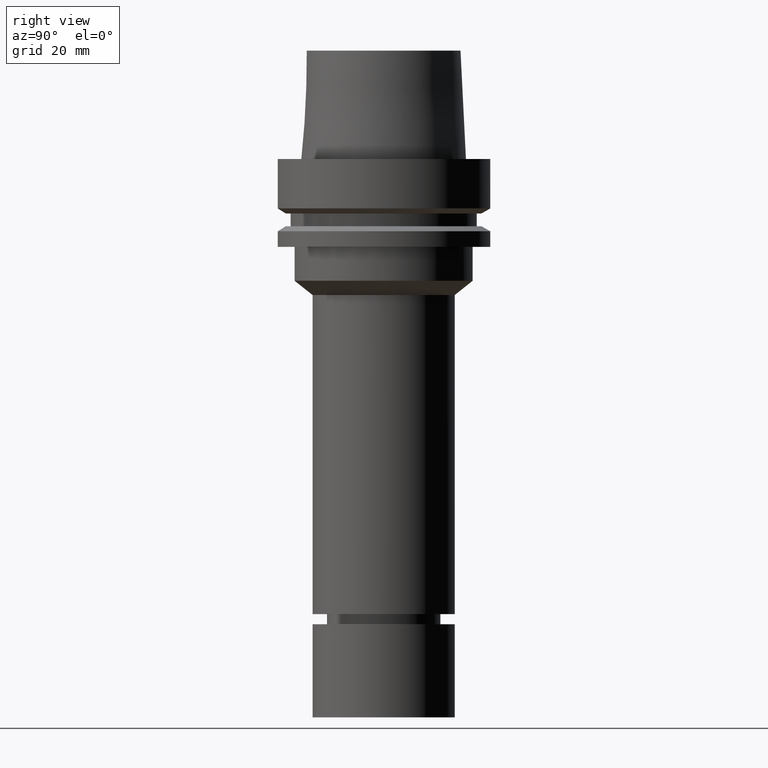
[diagram: clean part render]
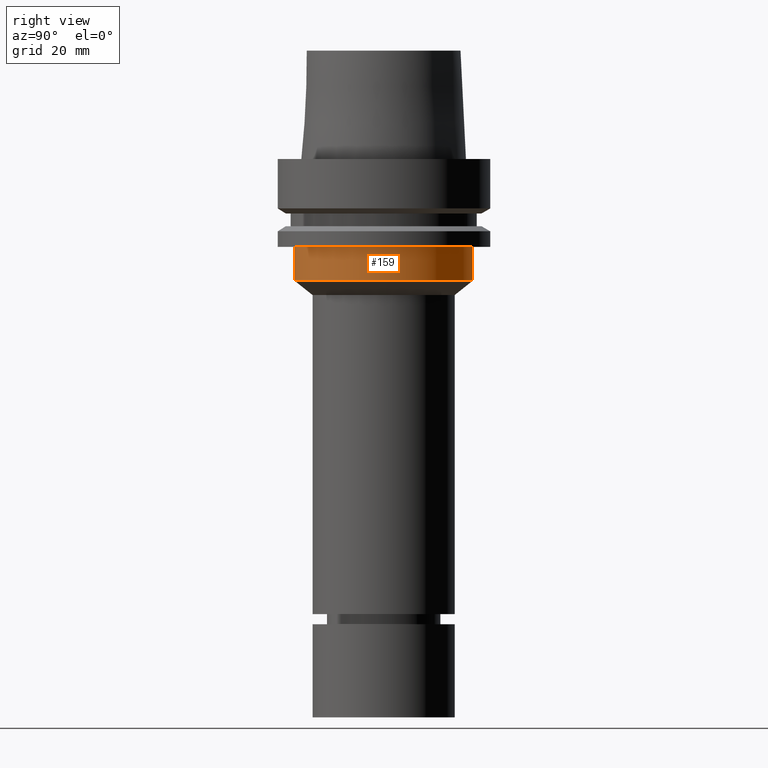
[diagram: same view with one face highlighted and labeled with its STEP entity id]
A machine part, right view. The second image highlights one B-rep face of the part: STEP entity #159.
In plain terms, the highlighted cylindrical surface (bore or boss wall) has radius 26.3 mm, axis along (-0, -0, 1).
Its self-contained STEP definition (entity closure, byte-faithful):
#133=EDGE_CURVE('Unnamed[1]',#298,#298,#299,.T.);
#159=ADVANCED_FACE('Unnamed[1]',(#337,#338),#339,.T.);
#165=EDGE_CURVE('Unnamed[1]',#347,#347,#348,.T.);
#298=VERTEX_POINT('',#510);
#299=CIRCLE('',#511,26.3);
#337=FACE_BOUND('',#558,.T.);
#338=FACE_BOUND('',#559,.T.);
#339=CYLINDRICAL_SURFACE('',#560,26.3);
#347=VERTEX_POINT('',#571);
#348=CIRCLE('',#572,26.3);
#510=CARTESIAN_POINT('',(2.20436423799915E-015,26.3,-35.9999999923883));
#511=AXIS2_PLACEMENT_3D('',#722,#723,#724);
#558=EDGE_LOOP('',(#763));
#559=EDGE_LOOP('',(#764));
#560=AXIS2_PLACEMENT_3D('',#765,#766,#767);
#571=CARTESIAN_POINT('',(1.59204083889154E-015,26.3,-25.9999999999997));
#572=AXIS2_PLACEMENT_3D('',#774,#775,#776);
#722=CARTESIAN_POINT('',(2.20436423799915E-015,4.4087284759983E-015,-35.9999999923883));
#723=DIRECTION('',(-6.12323399573677E-017,-1.22464679914735E-016,1.0));
#724=DIRECTION('',(-1.23259516440783E-032,1.0,1.22464679914735E-016));
#763=ORIENTED_EDGE('',*,*,#165,.F.);
#764=ORIENTED_EDGE('',*,*,#133,.T.);
#765=CARTESIAN_POINT('',(1.89820253844535E-015,3.79640507689069E-015,-30.999999996194));
#766=DIRECTION('',(-6.12323399573677E-017,-1.22464679914735E-016,1.0));
#767=DIRECTION('',(-1.23259516440783E-032,1.0,1.22464679914735E-016));
#774=CARTESIAN_POINT('',(1.59204083889154E-015,3.18408167778308E-015,-25.9999999999997));
#775=DIRECTION('',(-6.12323399573677E-017,-1.22464679914735E-016,1.0));
#776=DIRECTION('',(-1.23259516440783E-032,1.0,1.22464679914735E-016));